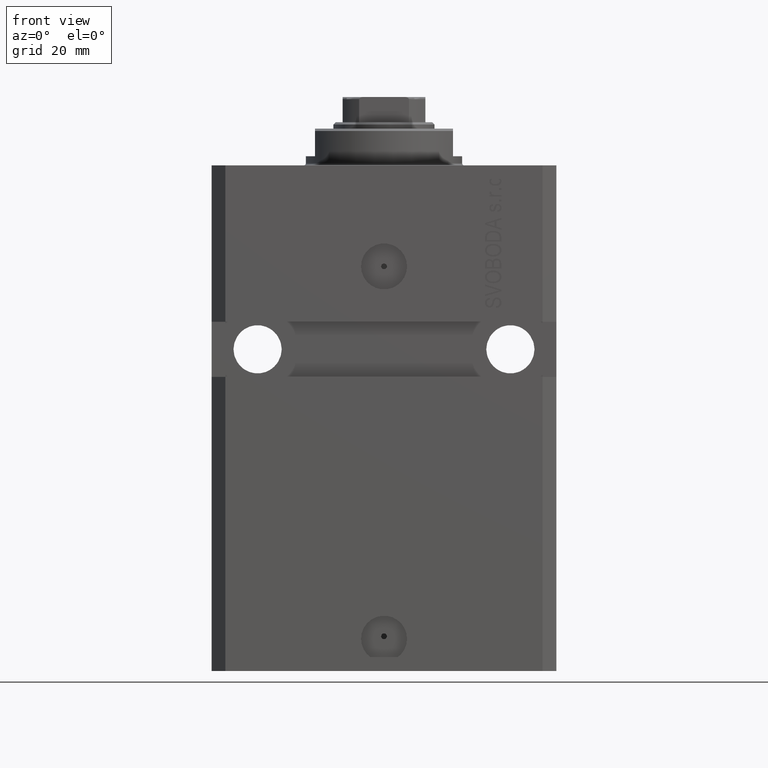
[diagram: clean part render]
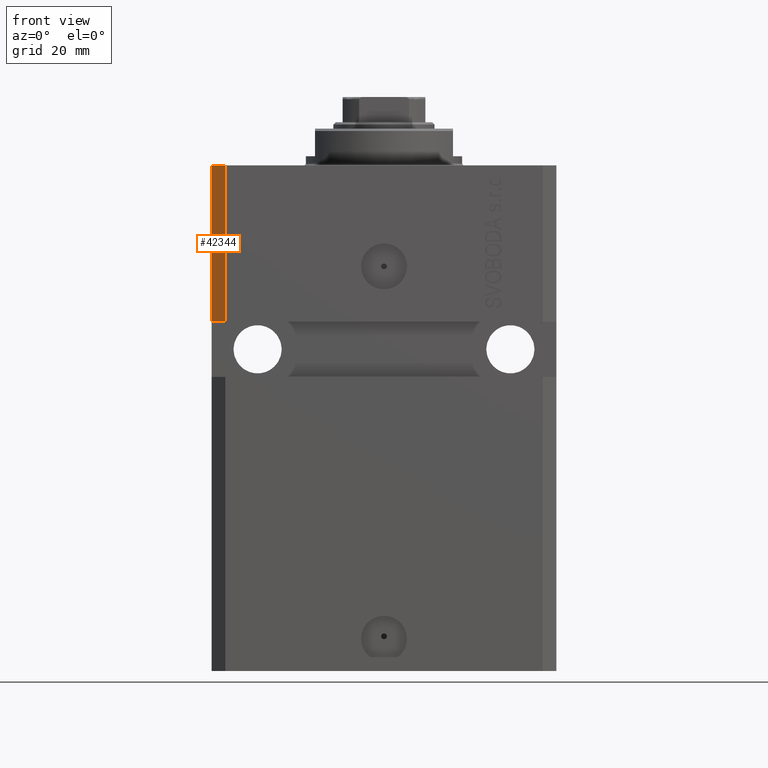
[diagram: same view with one face highlighted and labeled with its STEP entity id]
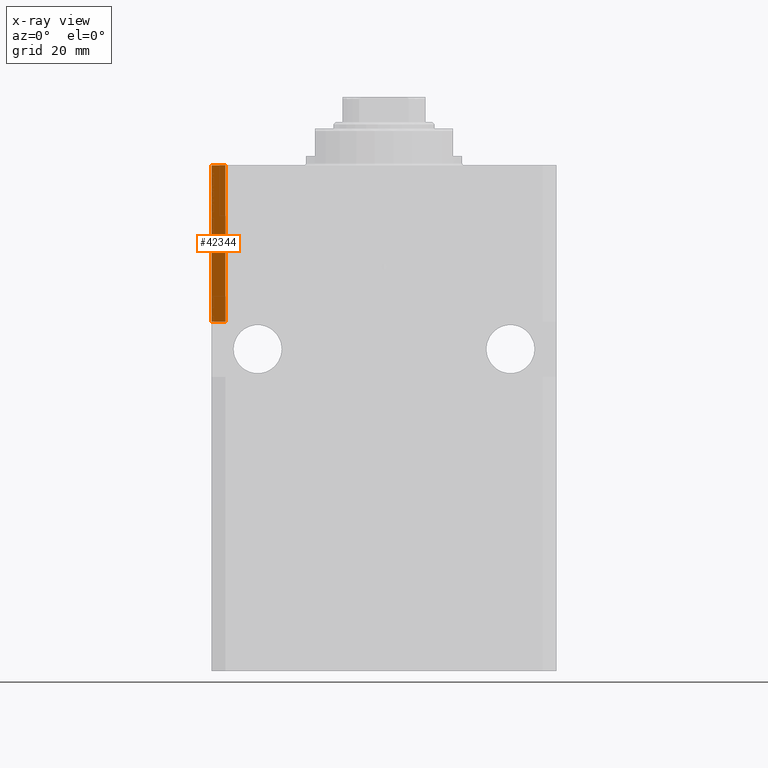
[diagram: x-ray of the same camera — body ghosted, the highlighted face saturated]
A machine part, front view. The second image highlights one B-rep face of the part: STEP entity #42344.
The next image is the same camera in x-ray: the body ghosted, the highlighted face saturated — about 0% of this face is hidden behind the body in this view.
In plain terms, the highlighted planar face has unit normal (-0.7071, -0.7071, 0).
Its self-contained STEP definition (entity closure, byte-faithful):
#1461 = DIRECTION ( 'NONE',  ( 0.000000000000000000, 0.000000000000000000, 1.000000000000000000 ) ) ;
#1780 = EDGE_CURVE ( 'NONE', #44367, #14542, #42469, .T. ) ;
#3017 = VERTEX_POINT ( 'NONE', #26924 ) ;
#3363 = EDGE_CURVE ( 'NONE', #17111, #3017, #15634, .T. ) ;
#6260 = DIRECTION ( 'NONE',  ( -0.7071067811865483499, 0.7071067811865466846, -1.962615573354721115E-16 ) ) ;
#6833 = AXIS2_PLACEMENT_3D ( 'NONE', #36876, #11794, #30026 ) ;
#7620 = CARTESIAN_POINT ( 'NONE',  ( -34.49999999999998579, -27.50000000000000000, -34.00000000000000000 ) ) ;
#9322 = EDGE_CURVE ( 'NONE', #14542, #17111, #23247, .T. ) ;
#11794 = DIRECTION ( 'NONE',  ( -0.7071067811865466846, -0.7071067811865483499, 0.000000000000000000 ) ) ;
#12365 = CARTESIAN_POINT ( 'NONE',  ( -37.49999999999999289, -24.50000000000000000, -110.0000000000000000 ) ) ;
#14542 = VERTEX_POINT ( 'NONE', #46390 ) ;
#15634 = LINE ( 'NONE', #36702, #34087 ) ;
#15867 = DIRECTION ( 'NONE',  ( 0.7071067811865483499, -0.7071067811865466846, 0.000000000000000000 ) ) ;
#17111 = VERTEX_POINT ( 'NONE', #36339 ) ;
#18228 = VECTOR ( 'NONE', #6260, 1000.000000000000000 ) ;
#19892 = VECTOR ( 'NONE', #1461, 1000.000000000000000 ) ;
#21324 = DIRECTION ( 'NONE',  ( 0.000000000000000000, 0.000000000000000000, 1.000000000000000000 ) ) ;
#21552 = LINE ( 'NONE', #46425, #44543 ) ;
#21995 = ORIENTED_EDGE ( 'NONE', *, *, #1780, .F. ) ;
#22210 = FACE_OUTER_BOUND ( 'NONE', #44830, .T. ) ;
#22220 = ORIENTED_EDGE ( 'NONE', *, *, #9322, .F. ) ;
#23247 = LINE ( 'NONE', #12365, #19892 ) ;
#23611 = EDGE_CURVE ( 'NONE', #44367, #3017, #21552, .T. ) ;
#24758 = ORIENTED_EDGE ( 'NONE', *, *, #3363, .F. ) ;
#26924 = CARTESIAN_POINT ( 'NONE',  ( -34.49999999999998579, -27.49999999999999645, 0.000000000000000000 ) ) ;
#30026 = DIRECTION ( 'NONE',  ( 0.7071067811865483499, -0.7071067811865466846, 0.000000000000000000 ) ) ;
#31425 = ORIENTED_EDGE ( 'NONE', *, *, #23611, .T. ) ;
#34087 = VECTOR ( 'NONE', #15867, 1000.000000000000000 ) ;
#36179 = PLANE ( 'NONE',  #6833 ) ;
#36339 = CARTESIAN_POINT ( 'NONE',  ( -37.49999999999999289, -24.50000000000000000, 0.000000000000000000 ) ) ;
#36702 = CARTESIAN_POINT ( 'NONE',  ( -37.49999999999999289, -24.50000000000000000, 0.000000000000000000 ) ) ;
#36876 = CARTESIAN_POINT ( 'NONE',  ( -37.49999999999999289, -24.50000000000000000, -110.0000000000000000 ) ) ;
#38686 = CARTESIAN_POINT ( 'NONE',  ( -37.50000000000000711, -24.49999999999998934, -34.00000000000001421 ) ) ;
#42344 = ADVANCED_FACE ( 'NONE', ( #22210 ), #36179, .T. ) ;
#42469 = LINE ( 'NONE', #38686, #18228 ) ;
#44367 = VERTEX_POINT ( 'NONE', #7620 ) ;
#44543 = VECTOR ( 'NONE', #21324, 1000.000000000000000 ) ;
#44830 = EDGE_LOOP ( 'NONE', ( #21995, #31425, #24758, #22220 ) ) ;
#46390 = CARTESIAN_POINT ( 'NONE',  ( -37.50000000000000000, -24.50000000000000000, -34.00000000000000000 ) ) ;
#46425 = CARTESIAN_POINT ( 'NONE',  ( -34.49999999999998579, -27.49999999999999645, -110.0000000000000000 ) ) ;